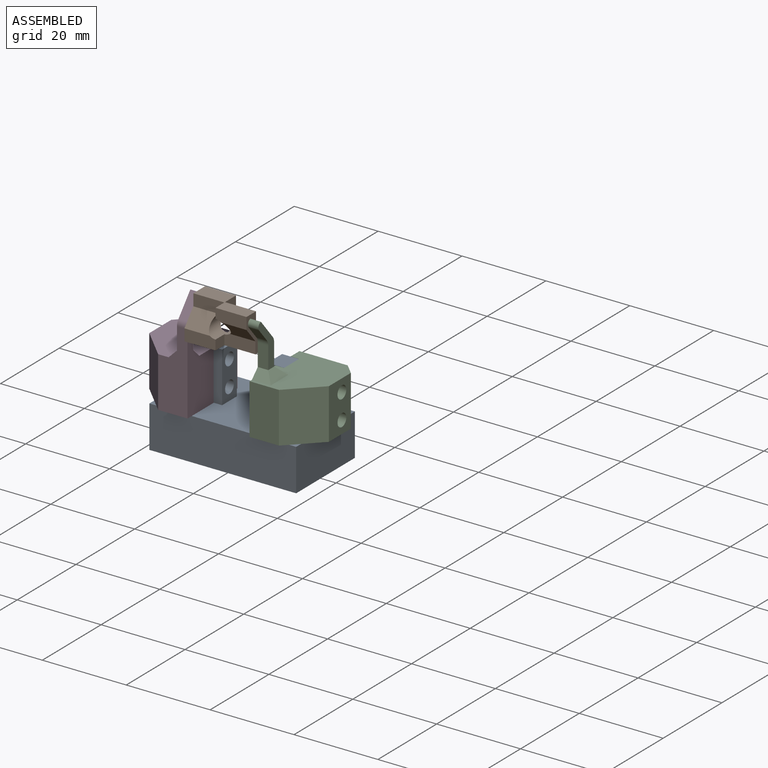
[diagram: assembled view]
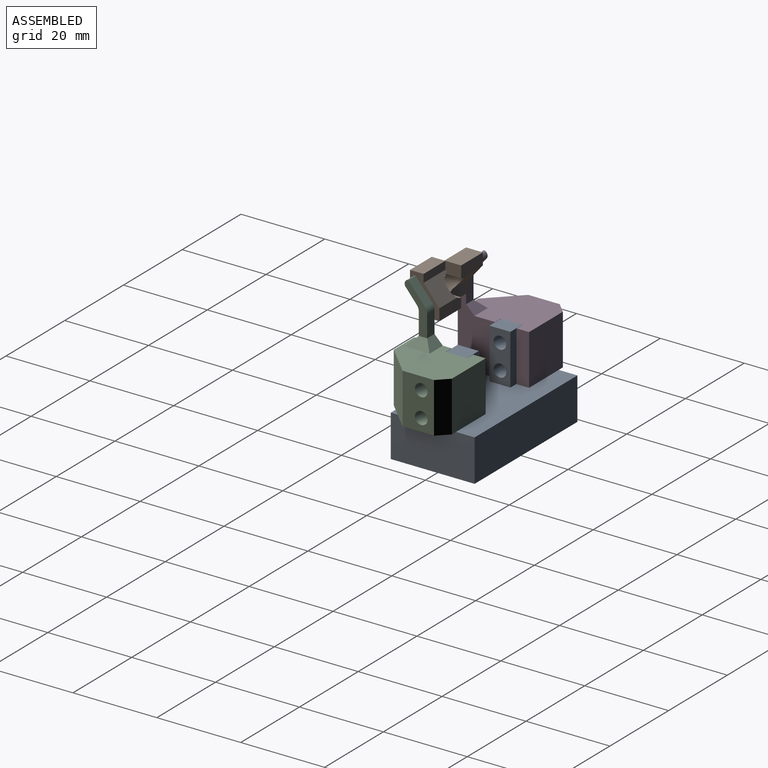
[diagram: assembled view, second angle]
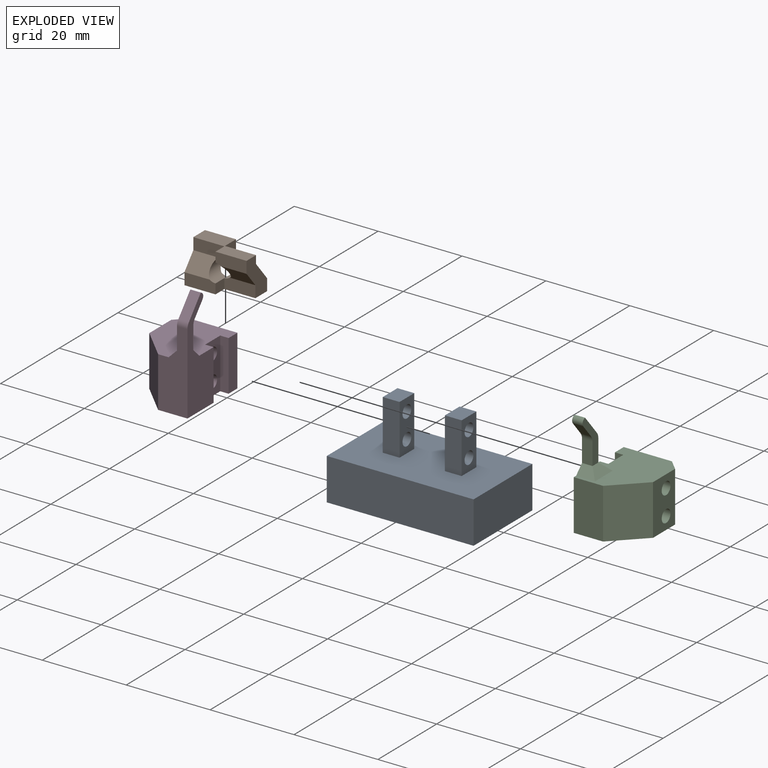
[diagram: exploded view]
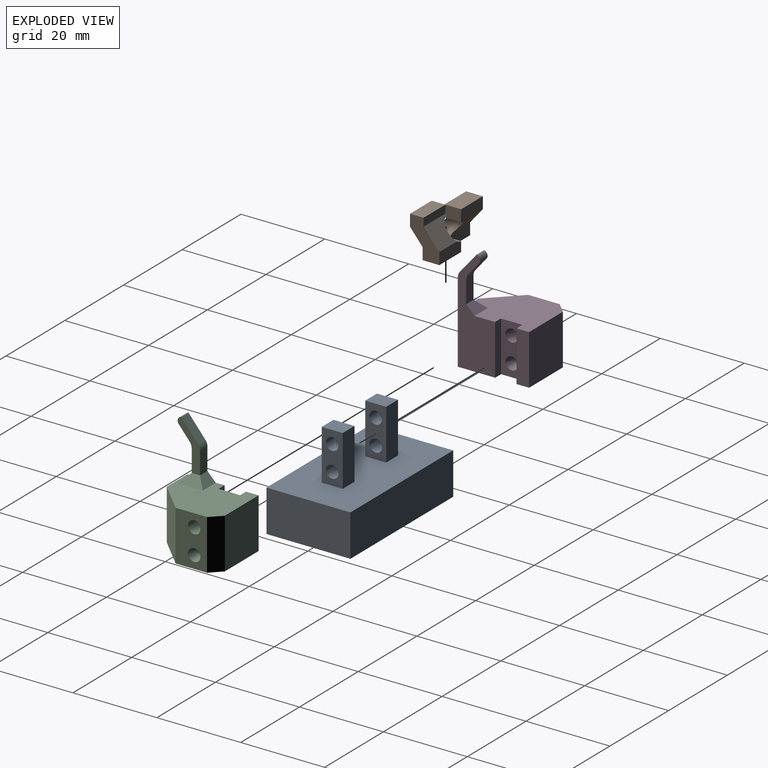
[diagram: exploded view, second angle]
ASSEMBLY  parts=4 mates=3
PART A: 20 faces, bbox 35x20x22 mm
  f0: plane 35x20mm, normal (0,0,1), area 660mm2, adj f1,f2,f3,f4,f6,f7,f8,f9
  f1: plane 35x10mm, normal (0,1,0), area 350mm2, adj f0,f2,f4,f5
  f2: plane 20x10mm, normal (-1,0,0), area 200mm2, adj f0,f1,f3,f5
  f3: plane 35x10mm, normal (0,-1,0), area 350mm2, adj f0,f2,f4,f5
  f4: plane 20x10mm, normal (1,0,0), area 200mm2, adj f0,f1,f3,f5
  f5: plane 35x20mm, normal (0,0,-1), area 700mm2, adj f1,f2,f3,f4
  f6: plane 12x5mm, normal (-1,0,0), area 45.9mm2, adj f0,f7,f9,f10,f18,f19
  f7: plane 12x4mm, normal (0,-1,0), area 48mm2, adj f0,f6,f8,f10
  f8: plane 12x5mm, normal (1,0,0), area 45.9mm2, adj f0,f7,f9,f10,f18,f19
  f9: plane 12x4mm, normal (0,1,0), area 48mm2, adj f0,f6,f8,f10
  f10: plane 5x4mm, normal (0,0,1), area 20mm2, adj f6,f7,f8,f9
  f11: plane 12x5mm, normal (1,0,0), area 45.9mm2, adj f0,f12,f14,f15,f16,f17
  f12: plane 12x4mm, normal (0,1,0), area 48mm2, adj f0,f11,f13,f15
  f13: plane 12x5mm, normal (-1,0,0), area 45.9mm2, adj f0,f12,f14,f15,f16,f17
  f14: plane 12x4mm, normal (0,-1,0), area 48mm2, adj f0,f11,f13,f15
  f15: plane 5x4mm, normal (0,0,1), area 20mm2, adj f11,f12,f13,f14
  f16: cylinder r=1.5mm len=4mm, axis (1,0,0), area 37.7mm2, adj f11,f13
  f17: cylinder r=1.5mm len=4mm, axis (1,0,0), area 37.7mm2, adj f11,f13
  f18: cylinder r=1.5mm len=4mm, axis (1,0,0), area 37.7mm2, adj f6,f8
  f19: cylinder r=1.5mm len=4mm, axis (1,0,0), area 37.7mm2, adj f6,f8
PART B: 22 faces, bbox 14.8x9.2x7 mm
  f0: plane 7.4x2.8mm, normal (0,0,1), area 20.3mm2, adj f3,f4,f13,f14,f20
  f1: plane 7.4x2.8mm, normal (0,0,1), area 20.7mm2, adj f2,f7,f12,f16,f21
  f2: plane 14.8x7mm, normal (0,-1,0), area 53.4mm2, adj f1,f3,f6,f7,f8,f10,f15,f16
  f3: plane 9.2x7mm, normal (1,0,0), area 34.9mm2, adj f0,f2,f4,f8,f14,f15,f17,f18
  f4: plane 14.8x7mm, normal (0,1,0), area 58.9mm2, adj f0,f3,f5,f7,f11,f13,f17,f19
  f5: plane 7.4x2.8mm, normal (0,0,-1), area 20.3mm2, adj f4,f7,f9,f19,f20
  f6: plane 3.02x2.35mm, normal (-1,0,0), area 7.1mm2, adj f2,f8,f10,f20
  f7: plane 9.2x7mm, normal (-1,0,0), area 36.6mm2, adj f1,f2,f4,f5,f9,f10,f11,f12
  f8: plane 7.4x2.8mm, normal (0,0,-1), area 20.3mm2, adj f2,f3,f6,f18,f20
  f9: plane 6.05x3.6mm, normal (0,-0.64,-0.77), area 25.5mm2, adj f5,f7,f10,f20
  f10: plane 7.4x2.8mm, normal (0,0,-1), area 20.7mm2, adj f2,f6,f7,f9,f16,f21
  f11: plane 7.4x2.8mm, normal (0,0,1), area 20.3mm2, adj f4,f7,f12,f13,f20
  f12: plane 6.05x3.6mm, normal (0,0.64,0.77), area 25.5mm2, adj f1,f7,f11,f20
  f13: plane 3.02x2.35mm, normal (-1,0,0), area 7.1mm2, adj f0,f4,f11,f20
  f14: plane 7.4x4.48mm, normal (0,-0.64,0.77), area 33.4mm2, adj f0,f3,f15,f16,f20
  f15: plane 7.4x1.92mm, normal (0,0,1), area 14.2mm2, adj f2,f3,f14,f16
  f16: plane 3.98x2.8mm, normal (1,0,0), area 10.5mm2, adj f1,f2,f10,f14,f15,f20,f21
  f17: plane 7.4x2.8mm, normal (0,0,-1), area 20.3mm2, adj f3,f4,f18,f19,f20
  f18: plane 6.05x3.6mm, normal (0,0.64,-0.77), area 25.5mm2, adj f3,f8,f17,f20
  f19: plane 3.02x2.35mm, normal (1,0,0), area 7.1mm2, adj f4,f5,f17,f20
  f20: cylinder r=2.25mm len=7mm, axis (0,0,1), area 50.1mm2, adj f0,f5,f6,f8,f9,f11,f12,f13
  f21: plane 3.98x1.35mm, normal (0,1,0), area 5.4mm2, adj f1,f10,f16,f20
PART C: 25 faces, bbox 14x25.4x17.6 mm
  f0: plane 12x3mm, normal (-1,0,0), area 36mm2, adj f1,f4,f8,f9
  f1: plane 12x2mm, normal (0,0,-1), area 24mm2, adj f0,f8,f9,f11
  f2: plane 12x2mm, normal (0,0,1), area 24mm2, adj f3,f8,f9,f11
  f3: plane 25.36x9.46mm, normal (-1,0,0), area 136.5mm2, adj f2,f5,f8,f9,f14,f15,f17,f18
  f4: plane 12x11.5mm, normal (0,0,1), area 138mm2, adj f0,f7,f8,f9
  f5: plane 12x7mm, normal (0,0,-1), area 84mm2, adj f3,f6,f8,f9
  f6: plane 12x7mm, normal (0.71,0,-0.71), area 118.8mm2, adj f5,f8,f9,f13
  f7: plane 12x2.5mm, normal (0.71,0,0.71), area 42.4mm2, adj f4,f8,f9,f13
  f8: plane 17x14mm, normal (0,1,0), area 200.2mm2, adj f0,f1,f2,f3,f4,f5,f6,f7
  f9: plane 17x14mm, normal (0,-1,0), area 173.2mm2, adj f0,f1,f2,f3,f4,f5,f6,f7
  f10: cylinder r=1.5mm len=12mm, axis (1,0,0), area 113.1mm2, adj f11,f13
  f11: plane 12x5.1mm, normal (-1,0,0), area 47.1mm2, adj f1,f2,f8,f9,f10,f12
  f12: cylinder r=1.5mm len=12mm, axis (1,0,0), area 113.1mm2, adj f11,f13
  f13: plane 12x7.5mm, normal (1,0,0), area 75.9mm2, adj f6,f7,f8,f9,f10,f12
  f14: plane 5.27x2.5mm, normal (0,0,1), area 13.2mm2, adj f3,f16,f19,f24
  f15: plane 5.27x2.5mm, normal (0,0,-1), area 13.2mm2, adj f3,f16,f21,f23
  f16: plane 11.36x5.36mm, normal (1,0,0), area 21.7mm2, adj f14,f15,f17,f18,f20,f22,f23,f24
  f17: plane 4.8x4.03mm, normal (0,-0.64,0.77), area 15.7mm2, adj f3,f16,f22,f24
  f18: plane 3.17x2.66mm, normal (0,0.64,-0.77), area 10.3mm2, adj f3,f16,f22,f23
  f19: plane 4.5x2mm, normal (0,-0.71,0.71), area 9.9mm2, adj f3,f9,f14,f20
  f20: plane 6x2mm, normal (0.71,-0.71,0), area 11.3mm2, adj f9,f16,f19,f21
  f21: plane 4.5x2mm, normal (0,-0.71,-0.71), area 9.9mm2, adj f3,f9,f15,f20
  f22: cylinder r=1mm len=2.5mm, axis (-1,0,0), area 5.3mm2, adj f3,f16,f17,f18
  f23: cylinder r=2mm len=2.5mm, axis (1,0,0), area 3.5mm2, adj f3,f15,f16,f18
  f24: cylinder r=2mm len=2.5mm, axis (-1,0,0), area 3.5mm2, adj f3,f14,f16,f17
PART D: 23 faces, bbox 14x25.4x17 mm
  f0: plane 17x14mm, normal (0,-1,0), area 182.2mm2, adj f1,f2,f3,f7,f8,f9,f10,f11
  f1: plane 25.36x8.9mm, normal (1,0,0), area 134.5mm2, adj f0,f2,f4,f11,f14,f15,f17,f19
  f2: plane 19.27x7mm, normal (0,0,-1), area 104.2mm2, adj f0,f1,f4,f9,f16,f18,f22
  f3: plane 12x3mm, normal (1,0,0), area 36mm2, adj f0,f4,f7,f10
  f4: plane 17x14mm, normal (0,1,0), area 200.2mm2, adj f1,f2,f3,f7,f8,f9,f10,f11
  f5: cylinder r=1.5mm len=12mm, axis (1,0,0), area 113.1mm2, adj f12,f13
  f6: cylinder r=1.5mm len=12mm, axis (1,0,0), area 113.1mm2, adj f12,f13
  f7: plane 12x11.5mm, normal (0,0,1), area 138mm2, adj f0,f3,f4,f8
  f8: plane 12x2.5mm, normal (-0.71,0,0.71), area 42.4mm2, adj f0,f4,f7,f13
  f9: plane 12x7mm, normal (-0.71,0,-0.71), area 118.8mm2, adj f0,f2,f4,f13
  f10: plane 12x2mm, normal (0,0,-1), area 24mm2, adj f0,f3,f4,f12
  f11: plane 12x2mm, normal (0,0,1), area 24mm2, adj f0,f1,f4,f12
  f12: plane 12x5.1mm, normal (1,0,0), area 47.1mm2, adj f0,f4,f5,f6,f10,f11
  f13: plane 12x7.5mm, normal (-1,0,0), area 75.9mm2, adj f0,f4,f5,f6,f8,f9
  f14: plane 3.17x2.66mm, normal (0,0.64,0.77), area 10.3mm2, adj f1,f16,f20,f21
  f15: plane 4.8x4.03mm, normal (0,-0.64,-0.77), area 15.7mm2, adj f1,f16,f20,f22
  f16: plane 11.36x5.36mm, normal (-1,0,0), area 21.7mm2, adj f2,f14,f15,f17,f18,f20,f21,f22
  f17: plane 5.27x2.5mm, normal (0,0,1), area 13.2mm2, adj f1,f16,f19,f21
  f18: plane 4x2mm, normal (-0.71,-0.71,0), area 8.5mm2, adj f0,f2,f16,f19
  f19: plane 4.5x2mm, normal (0,-0.71,0.71), area 9.9mm2, adj f0,f1,f17,f18
  f20: cylinder r=1mm len=2.5mm, axis (-1,0,0), area 5.3mm2, adj f1,f14,f15,f16
  f21: cylinder r=2mm len=2.5mm, axis (-1,0,0), area 3.5mm2, adj f1,f14,f16,f17
  f22: cylinder r=2mm len=2.5mm, axis (1,0,0), area 3.5mm2, adj f1,f2,f15,f16
PLACE A t=(0,0,10)mm fixed
PLACE B rot(axis=(-1,0,0),90deg) t=(-54.74,-12.48,36.23)mm
PLACE C rot(axis=(-1,0,0),90deg) t=(21.4,-11.45,22)mm
PLACE D rot(axis=(-1,0,0),90deg) t=(-21.4,-11.45,22)mm
MATE cylindrical A.f16 <-> C.f10  axis (1,0,0) through (9.4,0,13)mm
MATE cylindrical A.f16 <-> D.f5  axis (-1,0,0) through (-9.4,0,13)mm
MATE planar B.f7 <-> D.f21  axis (-1,0,0) through (-7.4,-8.98,31.63)mm
